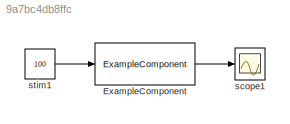
MODEL slx_9a7bc4db8ffc
KIND model
CONFIG AbsTol = auto
CONFIG EnableMultiTasking = off
CONFIG FixedStep = auto
CONFIG MaxStep = auto
CONFIG MinStep = auto
CONFIG RelTol = 1e-3
CONFIG SampleTimeConstraint = Unconstrained
CONFIG SolverName = FixedStepDiscrete
CONFIG StartTime = 0.0
CONFIG StopTime = 10.0
BLOCK [Reference] ExampleComponent  REF=ExampleComponent_v1/ExampleComponent
  SourceBlock = ExampleComponent_v1/ExampleComponent
BLOCK [Scope] scope1
  Floating = off
  NumInputPorts = 1
BLOCK [Constant] stim1
  SampleTime = Tsys
  Value = 100
LINE ExampleComponent:1 -> scope1:1
LINE stim1:1 -> ExampleComponent:1
